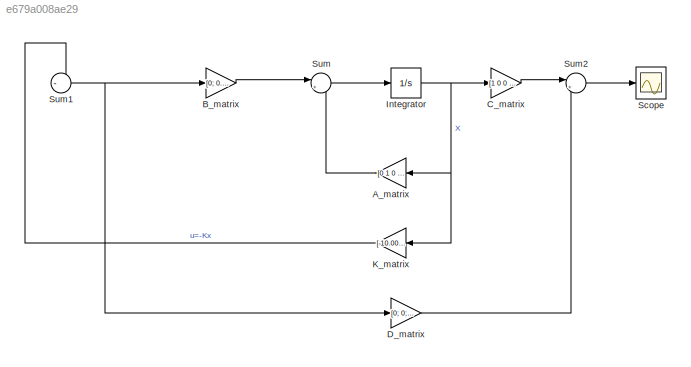
MODEL slx_e679a008ae29
KIND model
CONFIG AbsTol = auto
CONFIG EnableMultiTasking = off
CONFIG FixedStep = auto
CONFIG MaxStep = auto
CONFIG MinStep = auto
CONFIG RelTol = 1e-6
CONFIG SampleTimeConstraint = Unconstrained
CONFIG SolverName = VariableStepAuto
CONFIG StartTime = 0.0
CONFIG StopTime = 10.0
BLOCK [Gain] A_matrix
  Gain = [0 1 0 0;\n 0 0 3.27 0;\n 0 0 0 1;\n 0 0 19.62 0]
  Multiplication = Matrix(K*u)
BLOCK [Gain] B_matrix
  Gain = [0;\n 0.8889;\n 0;\n 1.3333]
  Multiplication = Matrix(K*u)
BLOCK [Gain] C_matrix
  Gain = [1 0 0 0;\n 0 1 0 0;\n 0 0 1 0;\n 0 0 0 1]
  Multiplication = Matrix(K*u)
BLOCK [Gain] D_matrix
  Gain = [0;\n 0;\n 0;\n 0]
  Multiplication = Matrix(K*u)
BLOCK [Integrator] Integrator
  InitialCondition = [0.2;0;0.2;0]
BLOCK [Gain] K_matrix
  Gain = [-10.0000  -12.3700   84.8689   19.7253]
  Multiplication = Matrix(K*u)
BLOCK [Scope] Scope
  Floating = off
  NumInputPorts = 1
  ScopeSpecificationString = Simulink.scopes.TimeScopeBlockCfg('CurrentConfiguration', extmgr.ConfigurationSet(extmgr.Configuration('Core','General UI',true),extmgr.Configuration('Core','Source UI',true),extmgr.Configuration('Sources','WiredSimulink',true),extmgr.Configuration('Visuals','Time Domain',true,'SerializedDisplays',{struct('MinYLimReal','-0.97801','MaxYLimReal','0.33089','YLabelReal','','MinYLimMag','0.00000','MaxY...<+1611ch>
BLOCK [Sum] Sum
  Inputs = |++
BLOCK [Sum] Sum1
  Inputs = -|
BLOCK [Sum] Sum2
  Inputs = |++
  NameLocation = top
LINE A_matrix:1 -> Sum:2
LINE B_matrix:1 -> Sum:1
LINE C_matrix:1 -> Sum2:1
LINE D_matrix:1 -> Sum2:2
NET Integrator:1 -> A_matrix:1, C_matrix:1, K_matrix:1
LINE K_matrix:1 -> Sum1:1
NET Sum1:1 -> B_matrix:1, D_matrix:1
LINE Sum2:1 -> Scope:1
LINE Sum:1 -> Integrator:1
note: NET lines group one-source signal fan-out (src -> all destinations, sorted); 1:1 wires keep LINE
